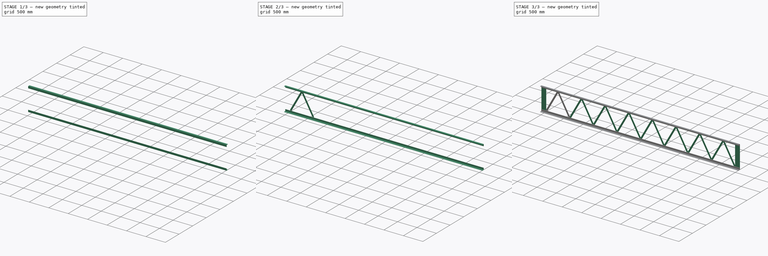
[diagram: build sequence overview — one tinted view per stage of 3, left to right]
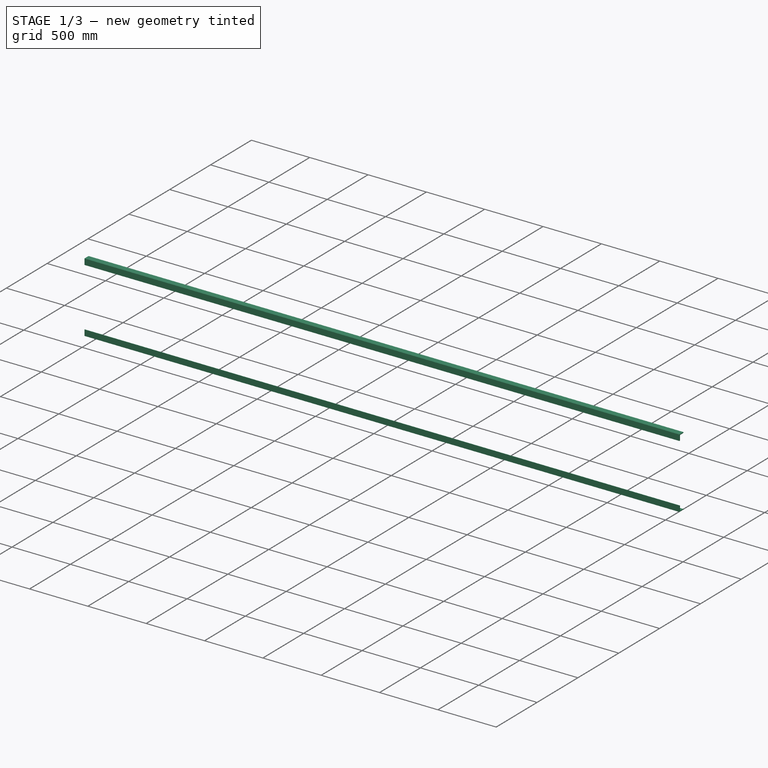
[diagram: stage 1 of 3 — iso view after this stage's code; geometry added in this stage tinted green]
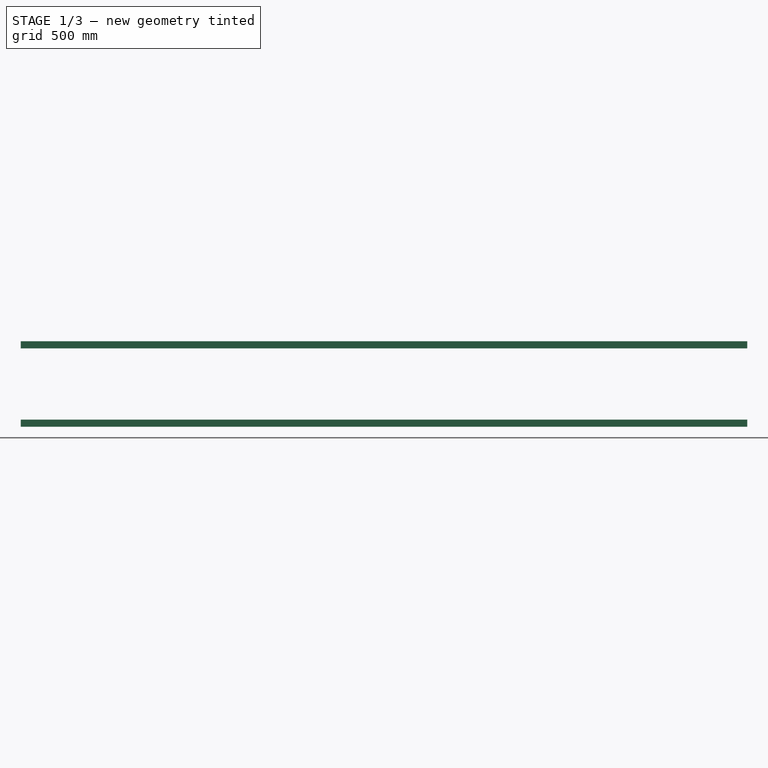
[diagram: stage 1 of 3 — front view after this stage's code; geometry added in this stage tinted green]
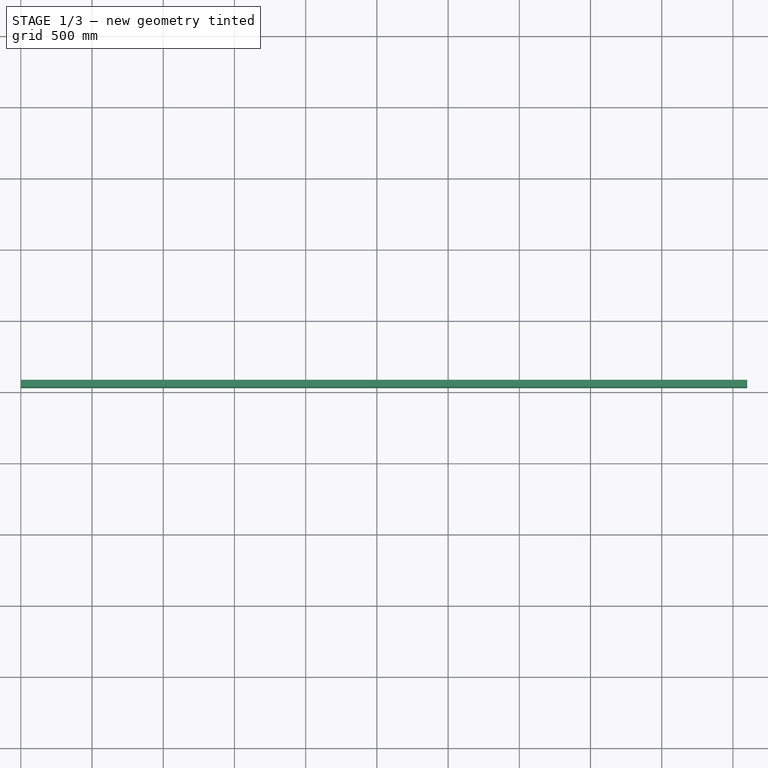
[diagram: stage 1 of 3 — top view after this stage's code; geometry added in this stage tinted green]
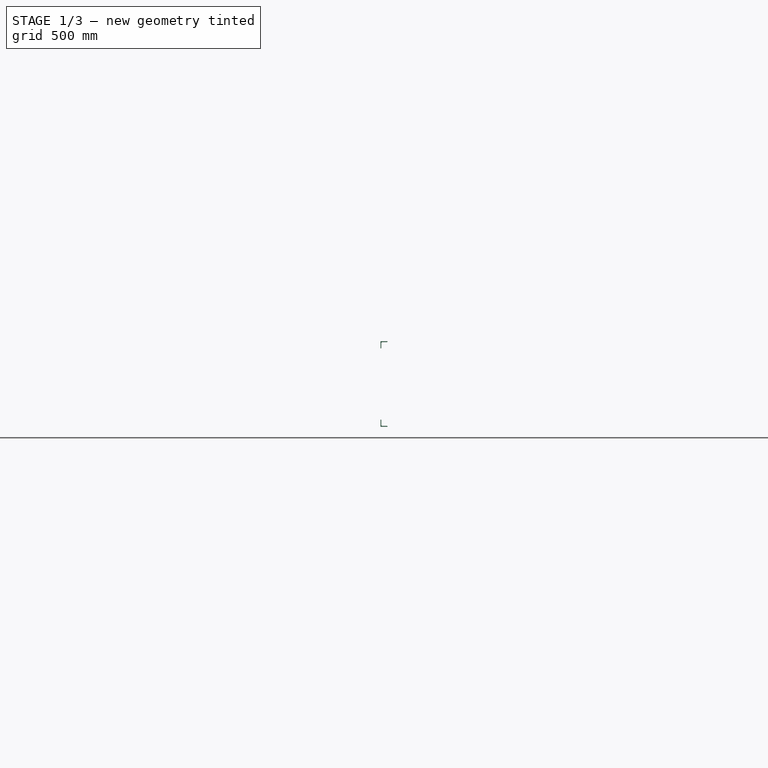
[diagram: stage 1 of 3 — right view after this stage's code; geometry added in this stage tinted green]
FCSTD DOCUMENT  (FreeCAD 0.21R33771 (Git))
Label: latticeBeam_old2
License: All rights reserved
LicenseURL: https://en.wikipedia.org/wiki/All_rights_reserved
objects: Part::Extrusion×4, Sketcher::SketchObject×3, Part::FeaturePython×2, Part::Mirroring×2, Spreadsheet::Sheet×1, Part::MultiFuse×1, App::Part×1
note: 11 computed .brp shape members not serialized (recipe doc carries the construction recipe); baked Part::Feature solids carry a one-line shape summary decoded from their .brp

FEATURE [Spreadsheet::Sheet] Spreadsheet
  cells = A2='梁成H0; B2(H0)=600; A3='梁長L0; B3(L0)=5100; A4='玄材shp; B4(shp)='50x50x6; A5='玄材ゲージラインGL0; B5(GL0)=55; A6='ラチス材Lshp; B6(Lshp)='6x38; A7='ラチス材幅Lb0; B7(Lb0)=38; A8='ラチス材厚Lt0; B8(Gt0)=6; A9='ガセットプレート幅Gb0; B9(Gb0)=120; A10='ラチスピッチrp0; B10(rp0)==(L0 - 2 * Gb0) / rn0; A11='ラチス配列数rn0; B11(rn0)=8; B16='t; C16='A; D16='GLine; A17='40x40x3; B17=3; C17=40; D17=22; A18='40x40x5; B18=5; C18=40; D18=22; A19='50x50x4; B19=4; C19=50; D19=30; A20='50x50x6; B20=6; C20=50; D20=30; A21='65x65x6; B21=6; C21=65; D21=35; A22='65x65x8; B22=8; C22=65; D22=35; A23='75x75x6; B23=6; C23=75; D23=40; A24='75x75x9; B24=9; C24=75; D24=40; A25='75x75x12; B25=12; C25=75; D25=40; A26='90x90x7; B26=7; C26=90; D26=50; A27='90x90x10; B27=10; C27=90; D27=50; A28='90x90x13; B28=13; C28=90; D28=50; A29='100x100x7; B29=7; C29=100; D29=55; A30='100x100x10; B30=10; C30=100; D30=55; A31='100x100x13; B31=13; C31=100; D31=55; A34='6x38; B34=6; C34=38; A35='9x38; B35=9; C35=38; A36='6x44; B36=6; C36=44; A37='9x44; B37=9; C37=44; A38='4.5x50; B38=4.5; C38=50; A39='6x50; B39=6; C39=50; A40='9x50; B40=9; C40=50; A41='6x65; B41=6; C41=65; A42='9x65; B42=9; C42=65; A43='6x75; B43=6; C43=75; A44='9x75; B44=9; C44=75; A45='6x90; B45=6; C45=90; A46='9x90; B46=9; C46=90
FEATURE [Part::FeaturePython] AngleSteel  # WARN: FeaturePython — macro-defined, semantics opaque (R4)
  A = 50
  B = 50
  L = 1000
  Placement = pos=(0,28.8,14.4) rot=(0,0,1;1.5708rad)
  Solid = false
  g0 = 7.85
  mass = 0
  size = 7
  standard = SS_Equal
  t = 8
FEATURE [Part::Mirroring] Mirror  label="AngleSteel (mirrored)"
  Base = (-2.54e-14,114.396,14.3963)
  Normal = (0,0,-1)
  Placement = pos=(0,0,600) rot=(0,0,1;0rad)
  Source = -> AngleSteel
  expr: .Placement.Base.z = Spreadsheet.H0
FEATURE [Part::Extrusion] Extrude002
  Base = -> AngleSteel
  Dir = (-1,2e-16,0)
  DirMode = 2
  FaceMakerClass = Part::FaceMakerBullseye
  LengthFwd = 5100
  LengthRev = 0
  Reversed = true
  Solid = false
  Symmetric = false
  expr: LengthFwd = Spreadsheet.L0
FEATURE [Part::Extrusion] Extrude003
  Base = -> Mirror
  Dir = (-1,2e-16,0)
  DirMode = 2
  FaceMakerClass = Part::FaceMakerBullseye
  LengthFwd = 5100
  LengthRev = 0
  Reversed = true
  Solid = false
  Symmetric = false
  expr: LengthFwd = Spreadsheet.L0
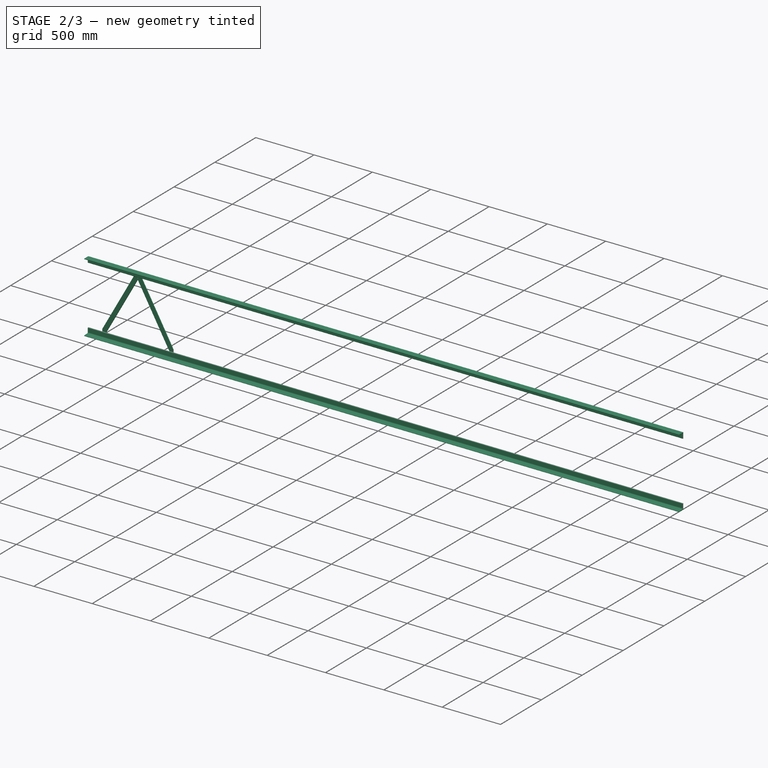
[diagram: stage 2 of 3 — iso view after this stage's code; geometry added in this stage tinted green]
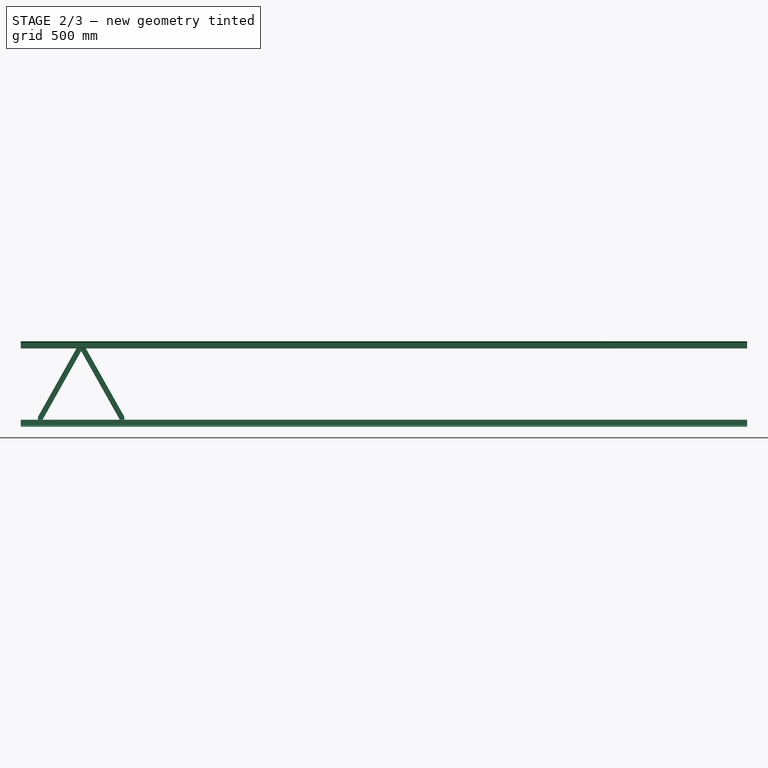
[diagram: stage 2 of 3 — front view after this stage's code; geometry added in this stage tinted green]
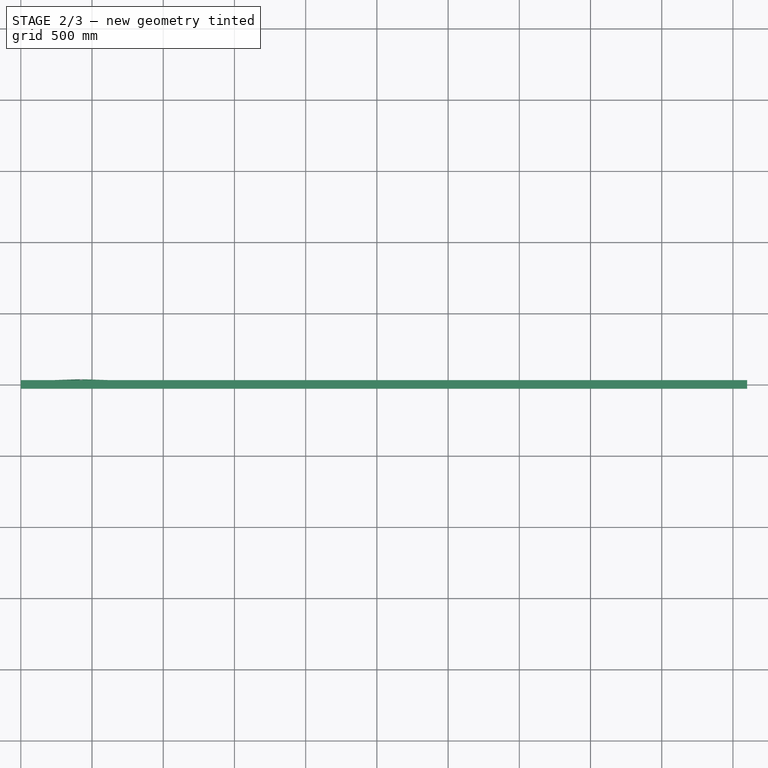
[diagram: stage 2 of 3 — top view after this stage's code; geometry added in this stage tinted green]
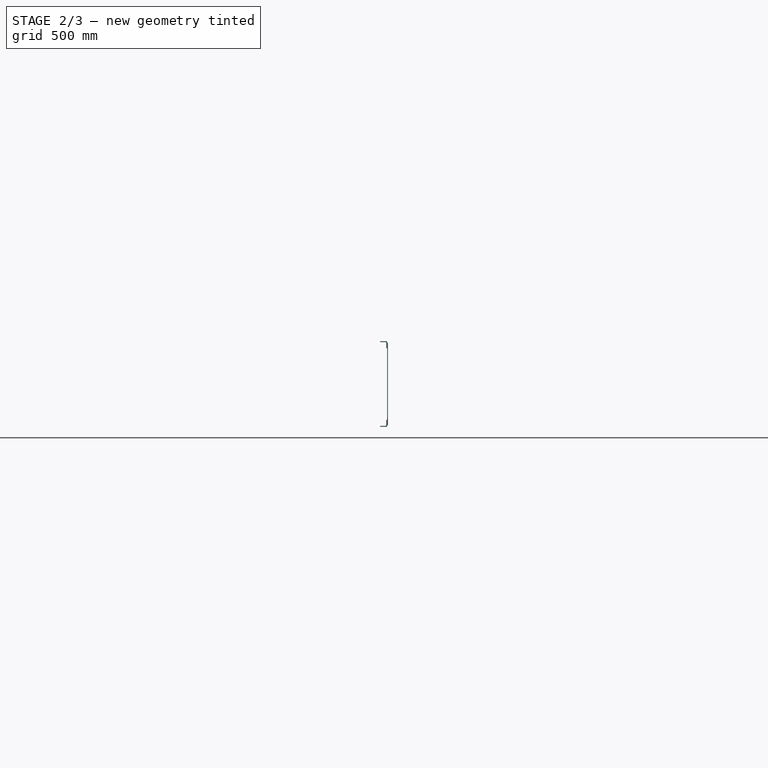
[diagram: stage 2 of 3 — right view after this stage's code; geometry added in this stage tinted green]
FEATURE [Sketcher::SketchObject] Sketch
  ExternalGeometry = -> [Extrude003,Extrude002]
  FullyConstrained = false
  Placement = pos=(0,0,0) rot=(1,0,0;1.5708rad)
  expr: Constraints[2] = Spreadsheet.Gb0
  expr: Constraints[5] = Spreadsheet.rp0
  expr: Constraints[8] = Spreadsheet.H0 - 60
  sketch-geometry (3):
    g0: LineSegment StartX=120 StartY=44.4 StartZ=0 EndX=423.75 EndY=584.4 EndZ=0
    g1: LineSegment StartX=423.75 StartY=584.4 StartZ=0 EndX=727.5 EndY=44.4 EndZ=0
    g2: LineSegment StartX=423.75 StartY=584.4 StartZ=0 EndX=423.75 EndY=523.534 EndZ=0
  constraints (9):
    c: Coincident(g0,g1)
    c: Horizontal(g0,g1)
    c: DistanceX(g-1,g0) = 120
    c: Coincident(g2,g0)
    c: Symmetric(g1,g0,g2)
    c: DistanceX(g0,g1) = 607.5
    c: DistanceY(g-1,g-4) = 14.4
    c: DistanceY(g-4,g0) = 30
    c: DistanceY(g0,g0) = 540
FEATURE [Sketcher::SketchObject] Sketch001
  ExternalGeometry = -> [Sketch,Extrude002]
  FullyConstrained = true
  Placement = pos=(0,0,14.4) rot=(1,0,0;1.5708rad)
  expr: Constraints[23] = Spreadsheet.Lb0
  expr: Constraints[24] = Spreadsheet.H0 - 20
  expr: Constraints[25] = Spreadsheet.Lb0 / 2
  sketch-geometry (9):
    g0: LineSegment StartX=120 StartY=68.7548 StartZ=0 EndX=413.2 EndY=590 EndZ=0
    g1: LineSegment StartX=423.75 StartY=531.245 StartZ=0 EndX=130.55 EndY=10 EndZ=0
    g2: LineSegment StartX=423.75 StartY=531.245 StartZ=0 EndX=716.95 EndY=10 EndZ=0
    g3: LineSegment StartX=727.5 StartY=68.7548 StartZ=0 EndX=434.3 EndY=590 EndZ=0
    g4: LineSegment StartX=413.2 StartY=590 StartZ=0 EndX=434.3 EndY=590 EndZ=0
    g5: LineSegment StartX=716.95 StartY=10 StartZ=0 EndX=727.5 EndY=10 EndZ=0
    g6: LineSegment StartX=727.5 StartY=10 StartZ=0 EndX=727.5 EndY=68.7548 EndZ=0
    g7: LineSegment StartX=130.55 StartY=10 StartZ=0 EndX=120 EndY=10 EndZ=0
    g8: LineSegment StartX=120 StartY=10 StartZ=0 EndX=120 EndY=68.7548 EndZ=0
  constraints (27):
    c: Coincident(g7,g8)
    c: Coincident(g0,g8)
    c: Coincident(g1,g7)
    c: Coincident(g0,g4)
    c: Coincident(g1,g2)
    c: Coincident(g3,g4)
    c: Coincident(g2,g5)
    c: Coincident(g5,g6)
    c: Coincident(g3,g6)
    c: Horizontal(g7)
    c: Horizontal(g4)
    c: Vertical(g8)
    c: Vertical(g7,g-4)
    c: Horizontal(g0,g3)
    c: Horizontal(g5)
    c: Horizontal(g1,g2)
    c: Vertical(g6)
    c: PointOnObject(g-3,g6)
    c: Parallel(g1,g-4)
    c: Parallel(g1,g0)
    c: Parallel(g2,g-3)
    c: Parallel(g-3,g3)
    c: Vertical(g1,g-4)
    c: Distance(g1,g0) = 38
    c: DistanceY(g2,g3) = 580
    c: Distance(g1,g-4) = 19
    c: DistanceY(g-5,g7) = 10
FEATURE [Part::Extrusion] Extrude
  Base = -> Sketch001
  Dir = (0,-1,2e-16)
  DirMode = 2
  FaceMakerClass = Part::FaceMakerBullseye
  LengthFwd = 6
  LengthRev = 0
  Placement = pos=(0,28.8,0) rot=(0,0,1;0rad)
  Solid = true
  Symmetric = false
FEATURE [Part::MultiFuse] Fusion
  Shapes = -> [Extrude003,Extrude002]
FEATURE [Part::Mirroring] Mirror001  label="Fusion (mirrored)"
  Base = (-3.2e-15,28.7963,514.396)
  Normal = (0,-1,0)
  Placement = pos=(0,-6,0) rot=(0,0,1;0rad)
  Source = -> Fusion
  expr: .Placement.Base.y = -Spreadsheet.Gt0
FEATURE [App::Part] Part  label="latticeBeam"
  Group = -> [Spreadsheet,Sketch,Sketch002,Sketch001,Fusion,Mirror,Mirror001,Extrude,Extrude001,Extrude003,Extrude002,Array,AngleSteel]
  Origin = -> Origin
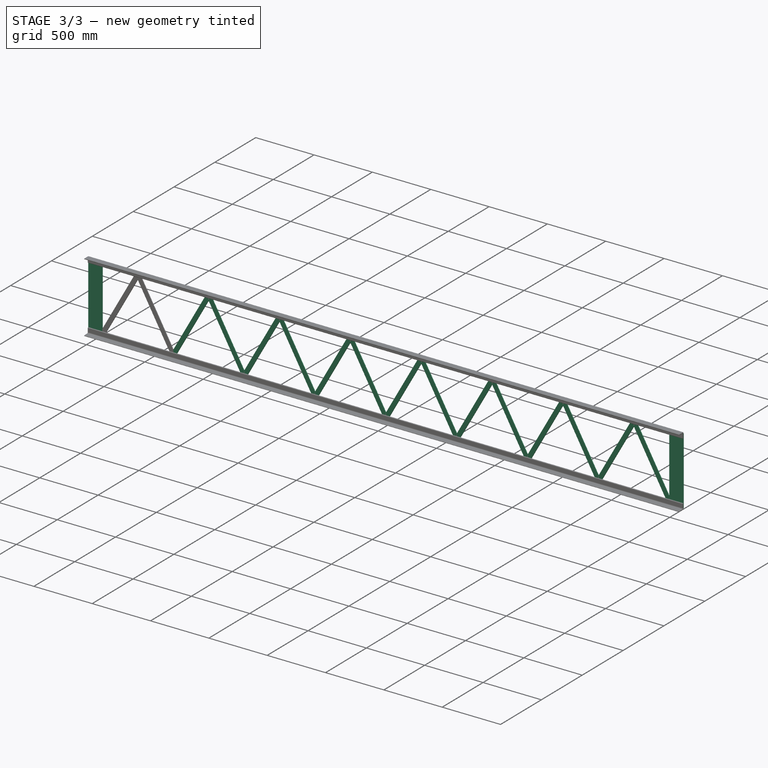
[diagram: stage 3 of 3 — iso view after this stage's code; geometry added in this stage tinted green]
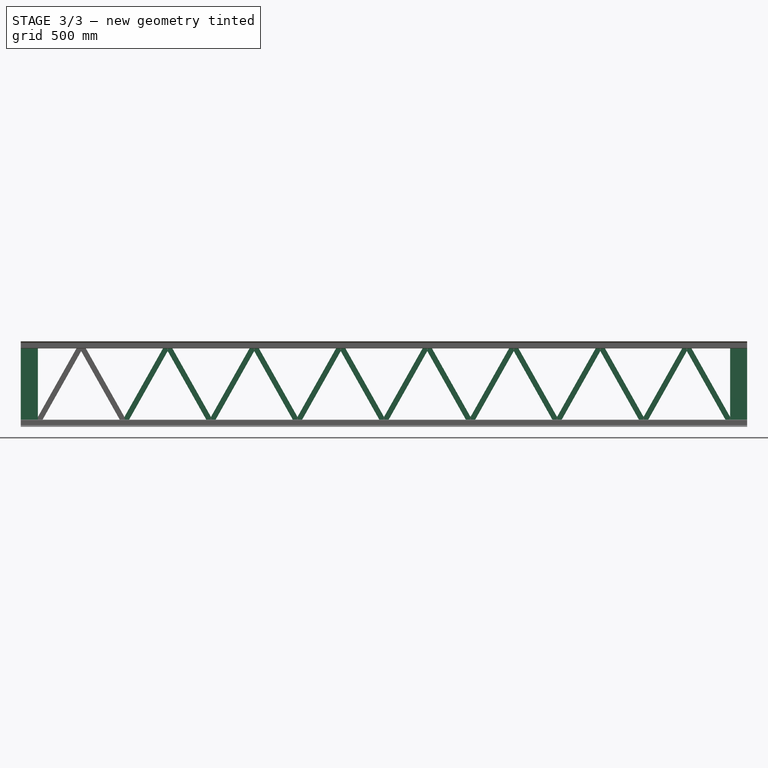
[diagram: stage 3 of 3 — front view after this stage's code; geometry added in this stage tinted green]
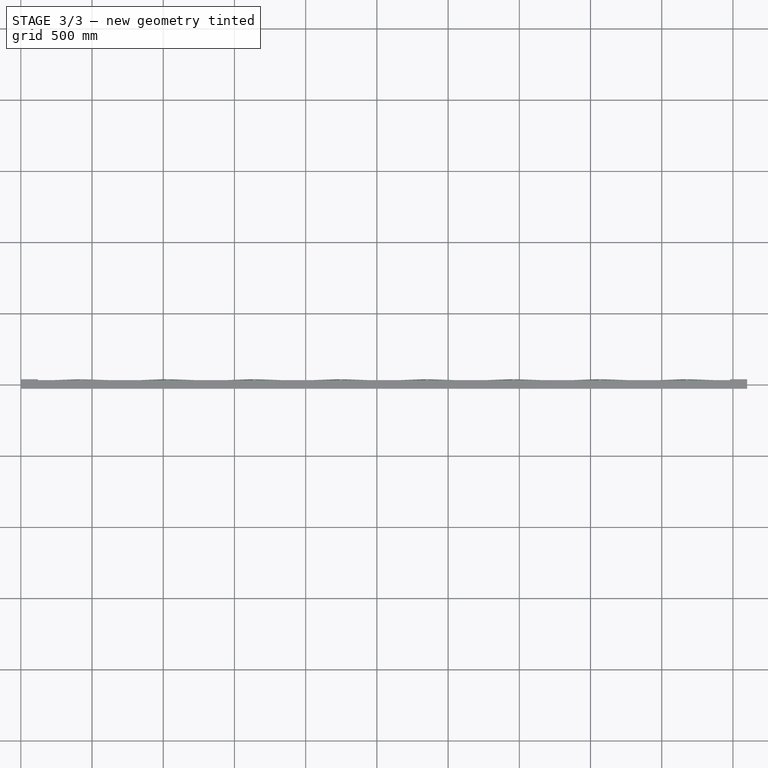
[diagram: stage 3 of 3 — top view after this stage's code; geometry added in this stage tinted green]
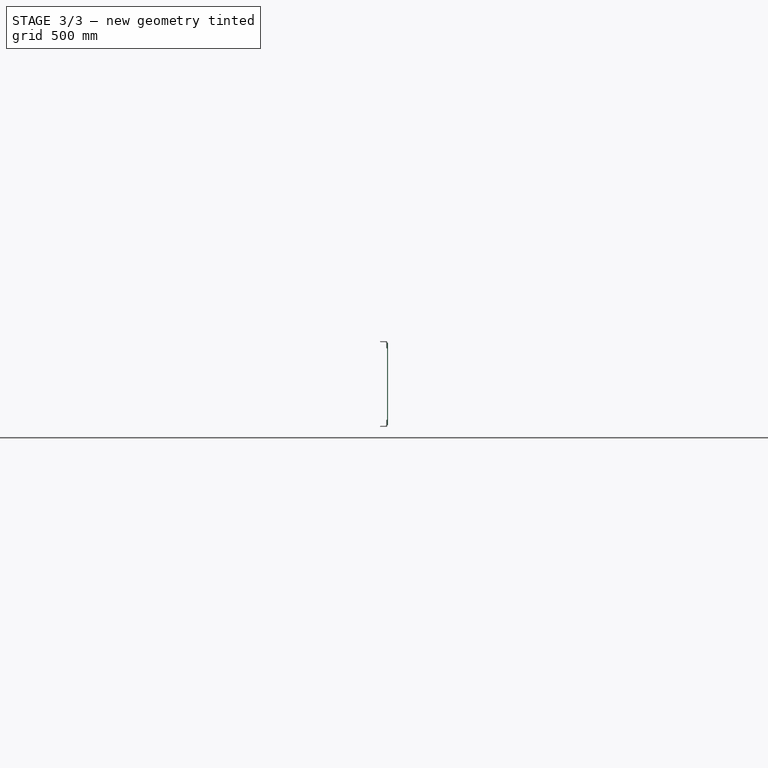
[diagram: stage 3 of 3 — right view after this stage's code; geometry added in this stage tinted green]
FEATURE [Part::FeaturePython] Array  # Draft array (typed FeaturePython)
  AlwaysSyncPlacement = false
  Angle = 360
  ArrayType = 0
  Axis = (0,0,1)
  Base = -> Extrude
  Center = (0,0,0)
  Count = 8
  ExpandArray = false
  Fuse = false
  IntervalAxis = (0,0,0)
  IntervalX = (607.5,0,0)
  IntervalY = (0,100,0)
  IntervalZ = (0,0,100)
  NumberCircles = 3
  NumberPolar = 5
  NumberX = 8
  NumberY = 1
  NumberZ = 1
  PlacementList = 8 placements: arithmetic series from (0,28.8,0) step (607.5,0,0) to (4252.5,28.8,0)
  RadialDistance = 50
  ScaleList = (8) [(1,1,1),(1,1,1),(1,1,1),(1,1,1),(1,1,1),(1,1,1),(1,1,1),(1,1,1)]
  Symmetry = 1
  TangentialDistance = 25
  expr: .IntervalX.x = Spreadsheet.rp0
  expr: NumberX = Spreadsheet.rn0
FEATURE [Sketcher::SketchObject] Sketch002
  ExternalGeometry = -> [Extrude]
  FullyConstrained = true
  Placement = pos=(0,0,14.4) rot=(1,0,0;1.5708rad)
  expr: Constraints[22] = Spreadsheet.L0
  sketch-geometry (8):
    g0: LineSegment StartX=0 StartY=10 StartZ=0 EndX=120 EndY=10 EndZ=0
    g1: LineSegment StartX=120 StartY=10 StartZ=0 EndX=120 EndY=590 EndZ=0
    g2: LineSegment StartX=120 StartY=590 StartZ=0 EndX=0 EndY=590 EndZ=0
    g3: LineSegment StartX=0 StartY=590 StartZ=0 EndX=0 EndY=10 EndZ=0
    g4: LineSegment StartX=5100 StartY=590 StartZ=0 EndX=4980 EndY=590 EndZ=0
    g5: LineSegment StartX=4980 StartY=590 StartZ=0 EndX=4980 EndY=10 EndZ=0
    g6: LineSegment StartX=4980 StartY=10 StartZ=0 EndX=5100 EndY=10 EndZ=0
    g7: LineSegment StartX=5100 StartY=10 StartZ=0 EndX=5100 EndY=590 EndZ=0
  constraints (23):
    c: Coincident(g0,g1)
    c: Coincident(g1,g2)
    c: Coincident(g2,g3)
    c: Coincident(g3,g0)
    c: Horizontal(g0)
    c: Horizontal(g2)
    c: Vertical(g1)
    c: Vertical(g3)
    c: Vertical(g-1,g0)
    c: Coincident(g0,g-3)
    c: Horizontal(g1,g-4)
    c: Coincident(g4,g5)
    c: Coincident(g5,g6)
    c: Coincident(g6,g7)
    c: Coincident(g7,g4)
    c: Horizontal(g4)
    c: Horizontal(g6)
    c: Vertical(g5)
    c: Vertical(g7)
    c: Equal(g0,g6)
    c: Horizontal(g6,g0)
    c: Horizontal(g1,g4)
    c: DistanceX(g0,g6) = 5100
FEATURE [Part::Extrusion] Extrude001
  Base = -> Sketch002
  Dir = (0,-1,2e-16)
  DirMode = 2
  FaceMakerClass = Part::FaceMakerBullseye
  LengthFwd = 6
  LengthRev = 0
  Placement = pos=(0,28.8,0) rot=(0,0,1;0rad)
  Solid = true
  Symmetric = false
  expr: LengthFwd = Spreadsheet.Gt0
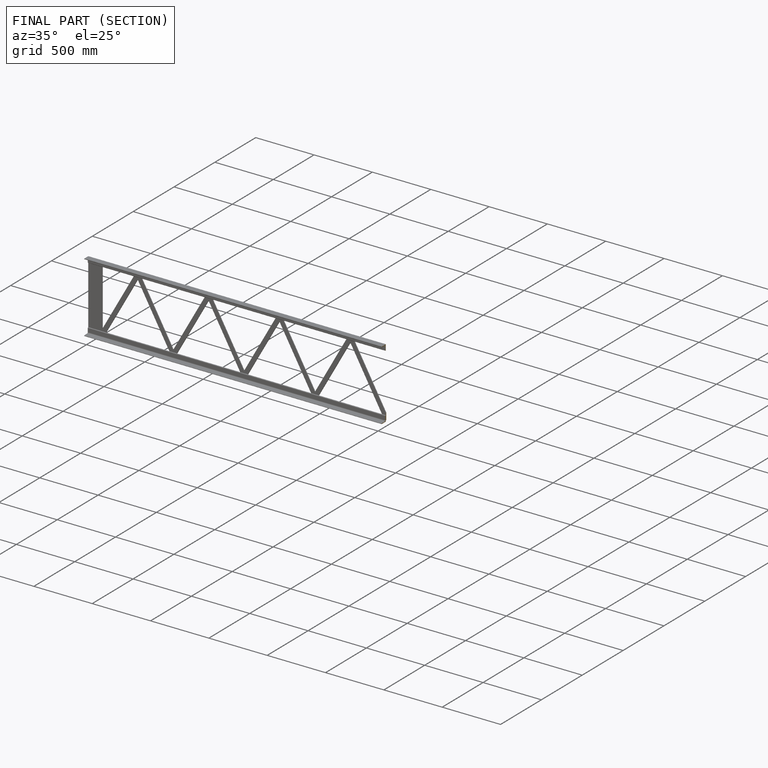
[diagram: finished part — half-section view (interior)]
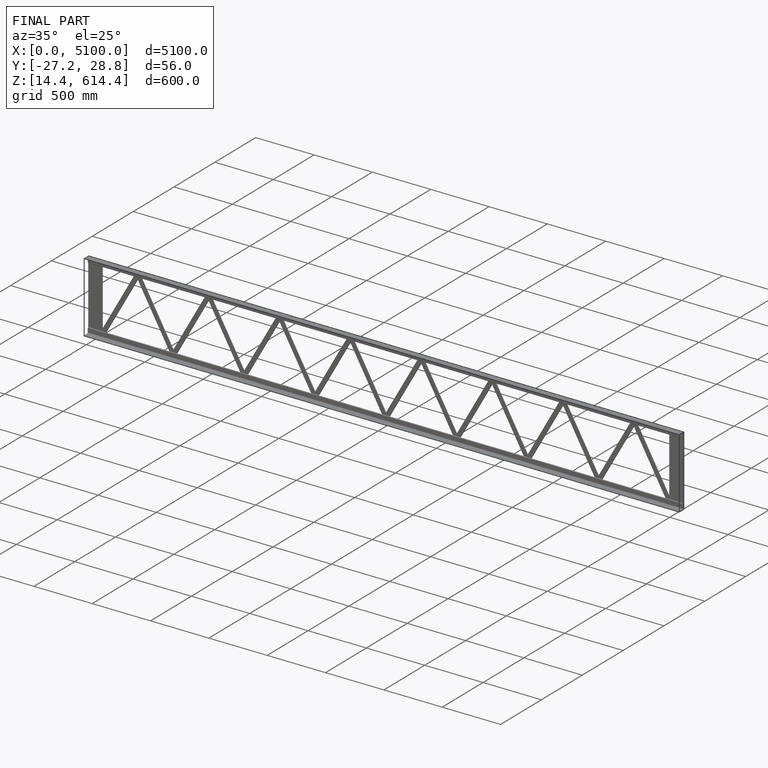
[diagram: finished part — iso view with bounding-box wireframe]
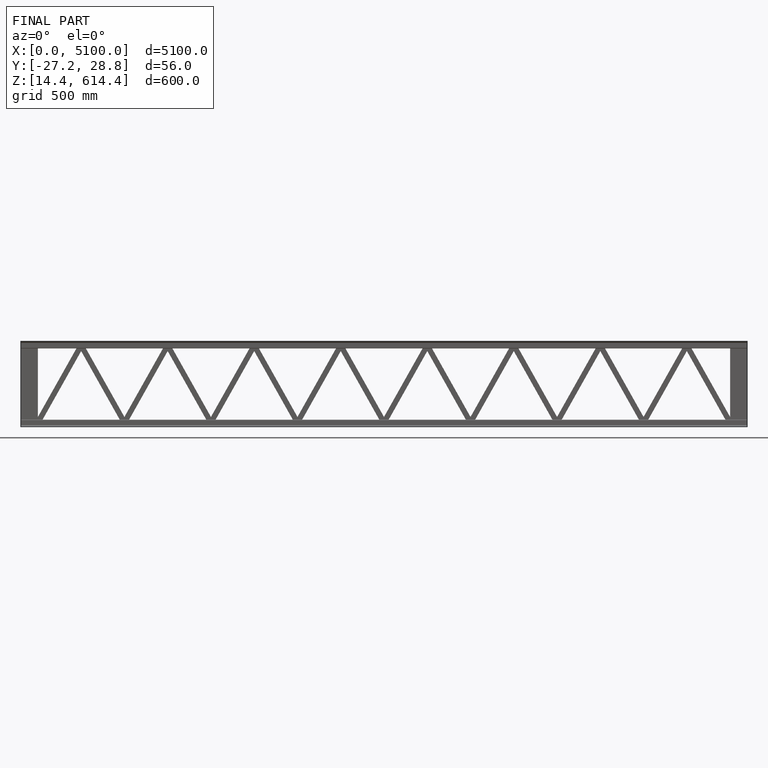
[diagram: finished part — front view with bounding-box wireframe]
